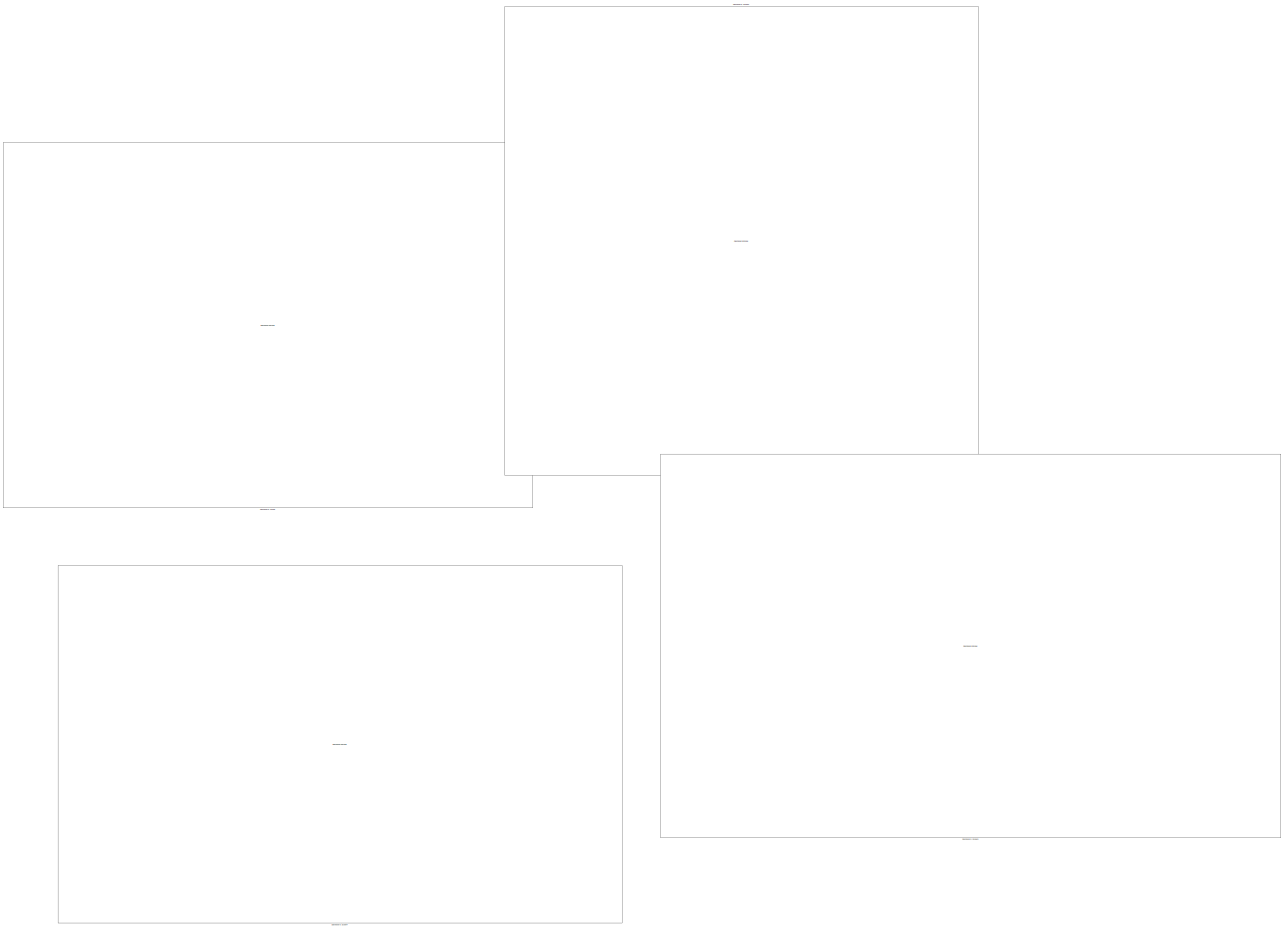
[diagram: root canvas - part 1/7, middle right region]
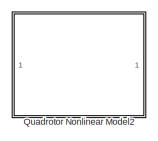
[diagram: root canvas - part 2/7, middle left region]
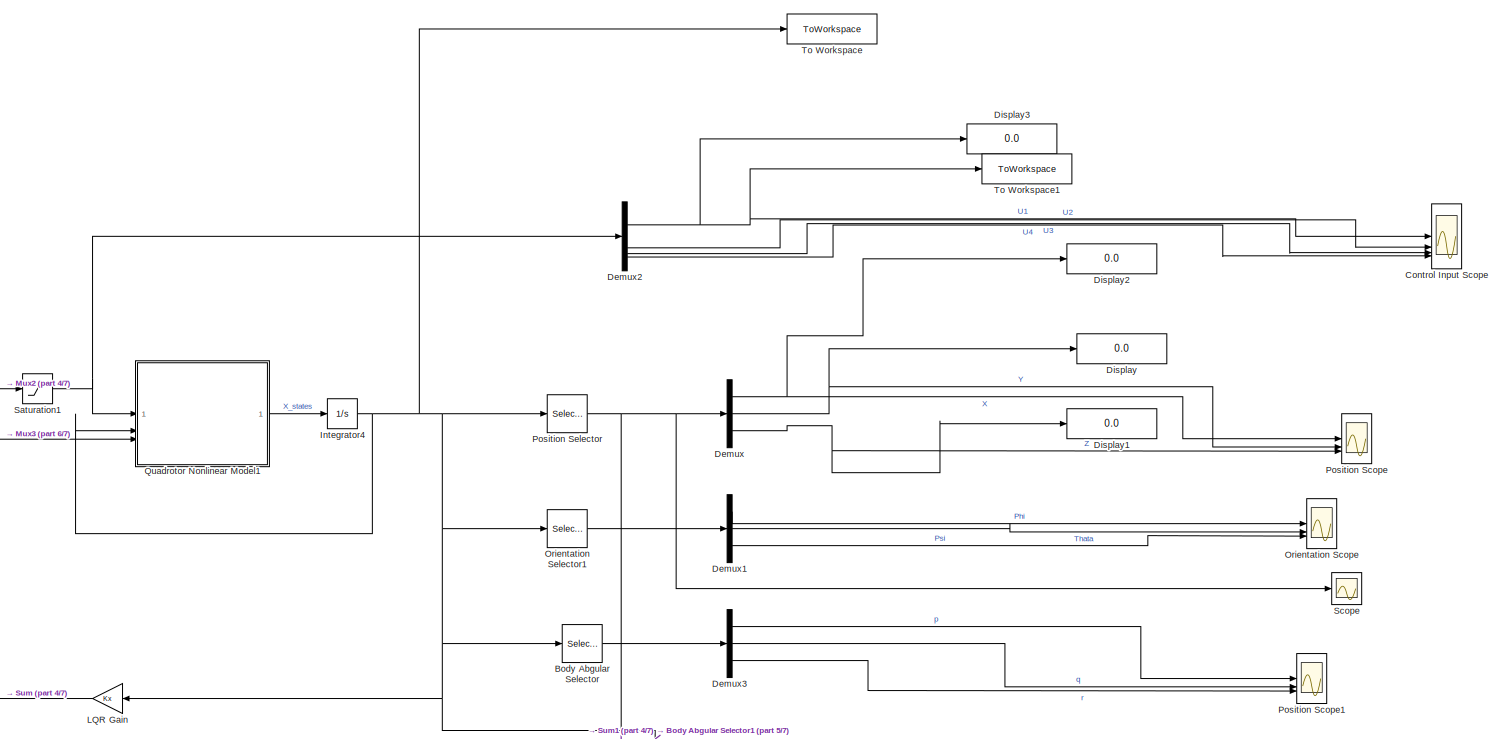
[diagram: root canvas - part 3/7, middle left region]
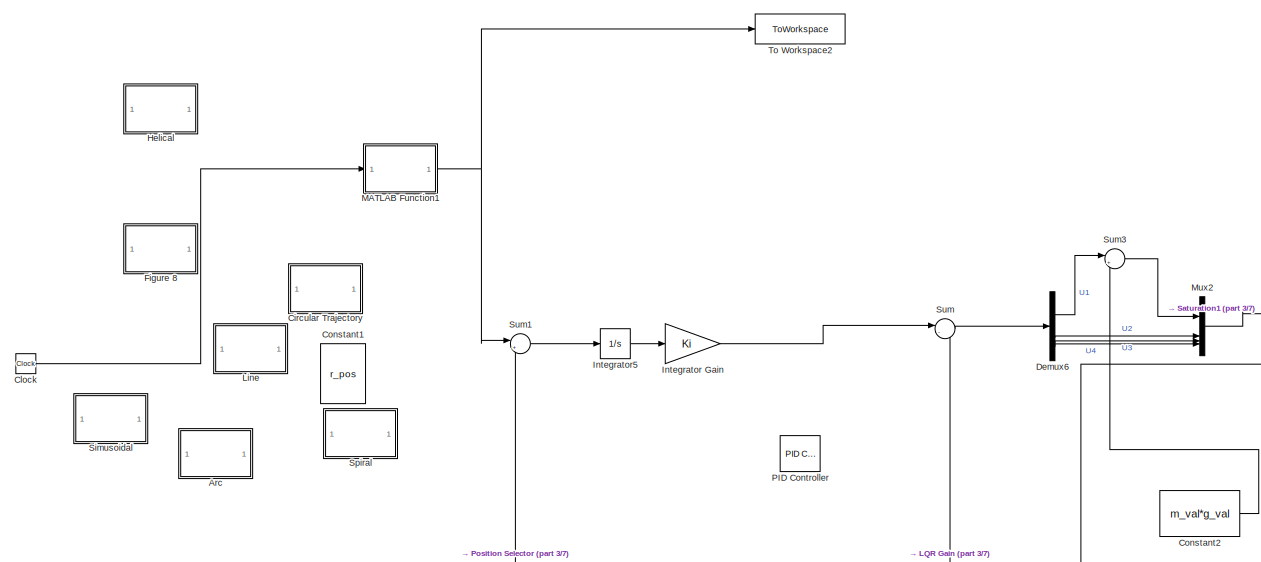
[diagram: root canvas - part 4/7, middle left region]
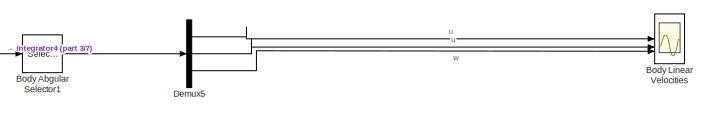
[diagram: root canvas - part 5/7, middle left region]
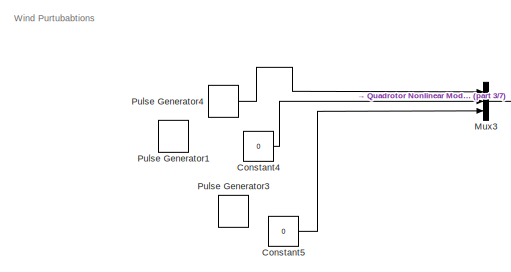
[diagram: root canvas - part 6/7, middle left region]
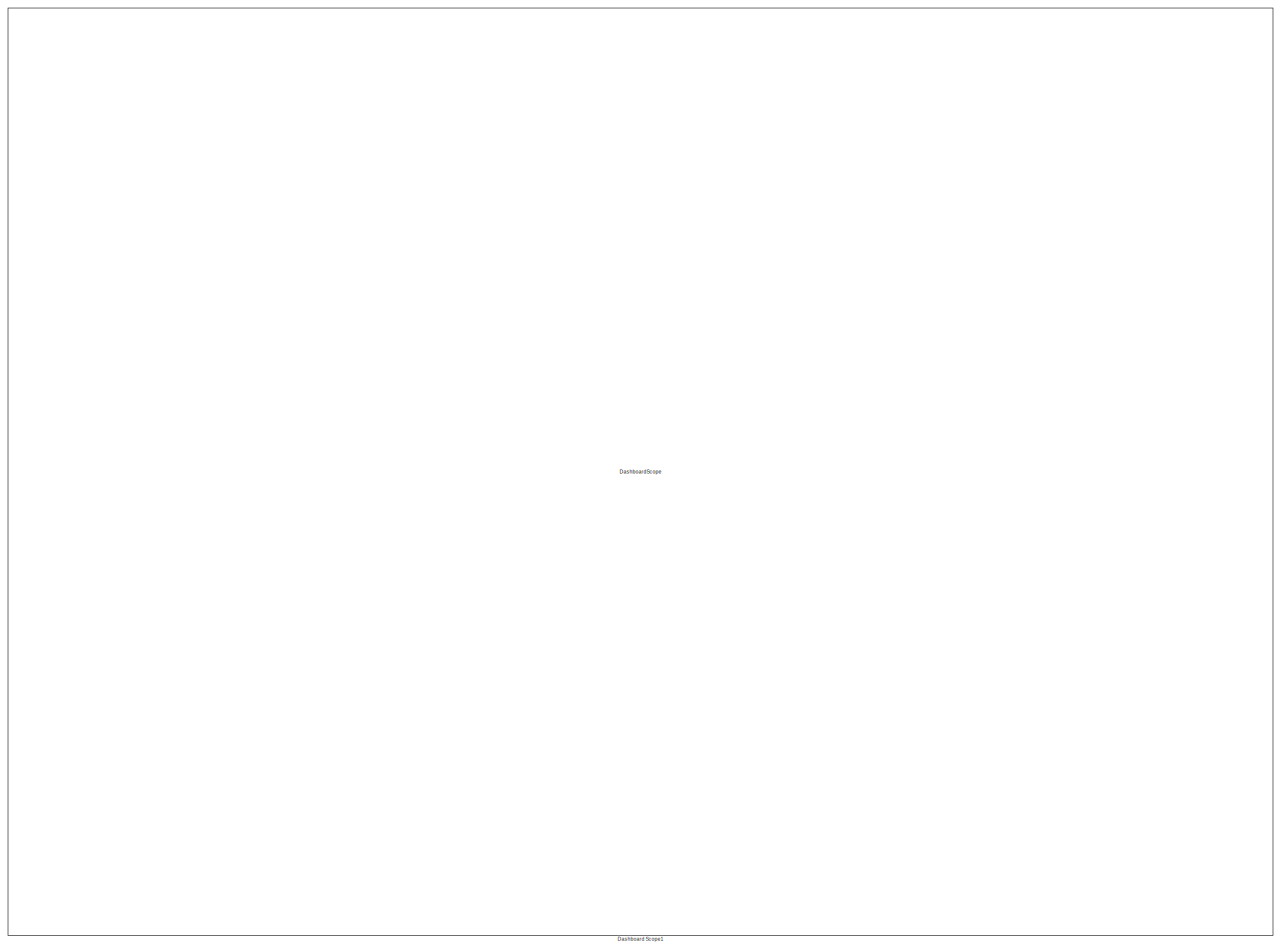
[diagram: root canvas - part 7/7, bottom right region]
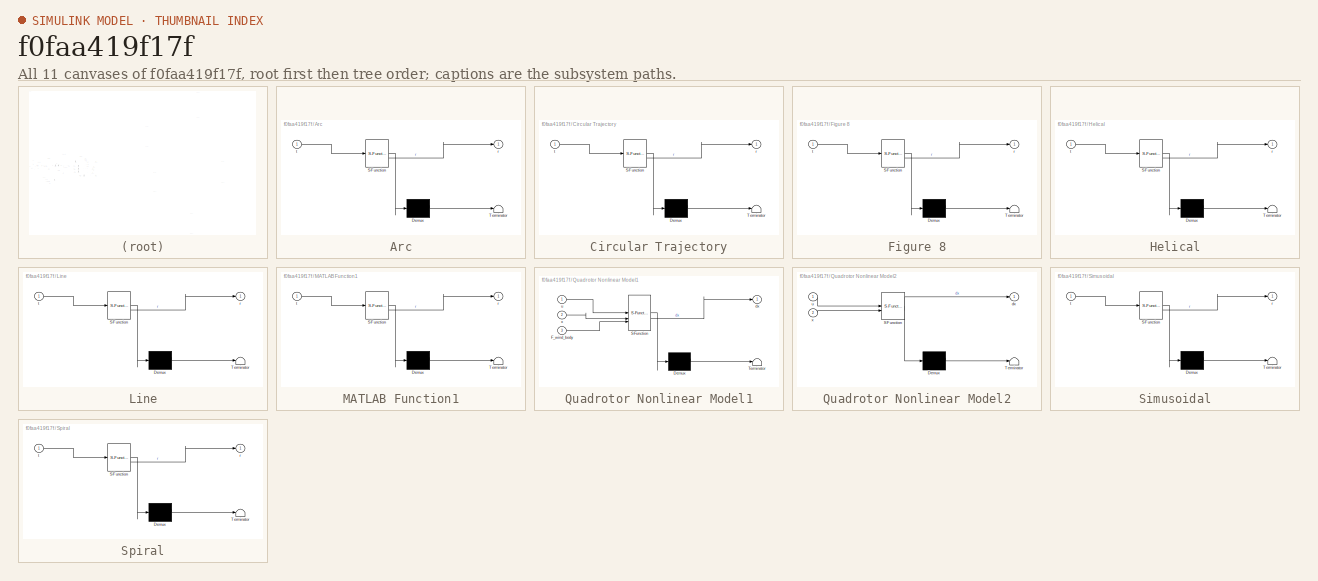
[diagram: thumbnail index - all 11 canvases of the model, root first then tree order]
MODEL slx_f0faa419f17f
KIND model
CONFIG AbsTol = auto
CONFIG EnableMultiTasking = off
CONFIG FixedStep = auto
CONFIG MaxStep = auto
CONFIG MinStep = auto
CONFIG RelTol = 1e-3
CONFIG SampleTimeConstraint = Unconstrained
CONFIG SolverName = VariableStepAuto
CONFIG StartTime = 0.0
CONFIG StopTime = 10.0
BLOCK [SubSystem] Arc
  ErrorFcn = Stateflow.Translate.translate
  PermitHierarchicalResolution = ExplicitOnly
  SFBlockType = MATLAB Function
  TreatAsAtomicUnit = on
BLOCK [Demux] Arc/ Demux 
  Outputs = 1
BLOCK [S-Function] Arc/ SFunction 
  EnableBusSupport = on
  FunctionName = sf_sfun
  PortCounts = [1 2]
  SFcnIsStateOwnerBlock = off
  SFunctionDeploymentMode = off
  Tag = Stateflow S-Function 6
BLOCK [Terminator] Arc/ Terminator 
BLOCK [Outport] Arc/r
BLOCK [Inport] Arc/t
BLOCK [Selector] Body Abgular Selector
  IndexOptions = Index vector (dialog)
  Indices = [10 11 12]
  InputPortWidth = 12
  OutputSizes = 1
BLOCK [Selector] Body Abgular Selector1
  IndexOptions = Index vector (dialog)
  Indices = [7 8 9]
  InputPortWidth = 12
  OutputSizes = 1
BLOCK [Scope] Body Linear Velocities
  Commented = on
  Floating = off
  NumInputPorts = 3
  ScopeSpecificationString = Simulink.scopes.TimeScopeBlockCfg('CurrentConfiguration', extmgr.ConfigurationSet(extmgr.Configuration('Core','General UI',true),extmgr.Configuration('Core','Source UI',true),extmgr.Configuration('Sources','WiredSimulink',true,'DataLoggingVariableName','ScopeData1'),extmgr.Configuration('Visuals','Time Domain',true),extmgr.Configuration('Tools','Plot Navigation',true),extmgr.Configuration('Tools',...<+40ch>
BLOCK [SubSystem] Circular Trajectory
  ErrorFcn = Stateflow.Translate.translate
  PermitHierarchicalResolution = ExplicitOnly
  SFBlockType = MATLAB Function
  TreatAsAtomicUnit = on
BLOCK [Demux] Circular Trajectory/ Demux 
  Outputs = 1
BLOCK [S-Function] Circular Trajectory/ SFunction 
  EnableBusSupport = on
  FunctionName = sf_sfun
  PortCounts = [1 2]
  SFcnIsStateOwnerBlock = off
  SFunctionDeploymentMode = off
  Tag = Stateflow S-Function 1
BLOCK [Terminator] Circular Trajectory/ Terminator 
BLOCK [Outport] Circular Trajectory/r
BLOCK [Inport] Circular Trajectory/t
BLOCK [Clock] Clock
BLOCK [Constant] Constant1
  Value = r_pos
  VectorParams1D = off
BLOCK [Constant] Constant2
  Value = m_val*g_val
BLOCK [Constant] Constant4
  Value = 0
BLOCK [Constant] Constant5
  Value = 0
BLOCK [Scope] Control Input Scope
  Commented = on
  Floating = off
  NumInputPorts = 4
  ScopeSpecificationString = Simulink.scopes.TimeScopeBlockCfg('CurrentConfiguration', extmgr.ConfigurationSet(extmgr.Configuration('Core','General UI',true),extmgr.Configuration('Core','Source UI',true),extmgr.Configuration('Sources','WiredSimulink',true,'DataLoggingVariableName','ScopeData2'),extmgr.Configuration('Visuals','Time Domain',true,'SerializedDisplays',{struct('MinYLimReal','-0.03151','MaxYLimReal','0.25254','YLab...<+1494ch>
BLOCK [DashboardScope] Dashboard Scope
BLOCK [DashboardScope] Dashboard Scope1
BLOCK [DashboardScope] Dashboard Scope2
BLOCK [DashboardScope] Dashboard Scope3
BLOCK [DashboardScope] Dashboard Scope4
BLOCK [Demux] Demux
  Outputs = 3
BLOCK [Demux] Demux1
  Outputs = 3
BLOCK [Demux] Demux2
BLOCK [Demux] Demux3
  Outputs = 3
BLOCK [Demux] Demux5
  Outputs = 3
BLOCK [Demux] Demux6
BLOCK [Display] Display
  Decimation = 1
BLOCK [Display] Display1
  Decimation = 1
BLOCK [Display] Display2
  Decimation = 1
BLOCK [Display] Display3
  Decimation = 1
BLOCK [SubSystem] Figure 8
  ErrorFcn = Stateflow.Translate.translate
  PermitHierarchicalResolution = ExplicitOnly
  SFBlockType = MATLAB Function
  TreatAsAtomicUnit = on
BLOCK [Demux] Figure 8/ Demux 
  Outputs = 1
BLOCK [S-Function] Figure 8/ SFunction 
  EnableBusSupport = on
  FunctionName = sf_sfun
  PortCounts = [1 2]
  SFcnIsStateOwnerBlock = off
  SFunctionDeploymentMode = off
  Tag = Stateflow S-Function 9
BLOCK [Terminator] Figure 8/ Terminator 
BLOCK [Outport] Figure 8/r
BLOCK [Inport] Figure 8/t
BLOCK [SubSystem] Helical
  ErrorFcn = Stateflow.Translate.translate
  PermitHierarchicalResolution = ExplicitOnly
  SFBlockType = MATLAB Function
  TreatAsAtomicUnit = on
BLOCK [Demux] Helical/ Demux 
  Outputs = 1
BLOCK [S-Function] Helical/ SFunction 
  EnableBusSupport = on
  FunctionName = sf_sfun
  PortCounts = [1 2]
  SFcnIsStateOwnerBlock = off
  SFunctionDeploymentMode = off
  Tag = Stateflow S-Function 10
BLOCK [Terminator] Helical/ Terminator 
BLOCK [Outport] Helical/r
BLOCK [Inport] Helical/t
BLOCK [Gain] Integrator Gain
  Gain = Ki
  Multiplication = Matrix(K*u)
BLOCK [Integrator] Integrator4
  InitialCondition = [0; 0; 0; zeros(9,1)]
BLOCK [Integrator] Integrator5
BLOCK [Gain] LQR Gain
  Gain = Kx
  Multiplication = Matrix(K*u)
BLOCK [SubSystem] Line
  ErrorFcn = Stateflow.Translate.translate
  PermitHierarchicalResolution = ExplicitOnly
  SFBlockType = MATLAB Function
  TreatAsAtomicUnit = on
BLOCK [Demux] Line/ Demux 
  Outputs = 1
BLOCK [S-Function] Line/ SFunction 
  EnableBusSupport = on
  FunctionName = sf_sfun
  PortCounts = [1 2]
  SFcnIsStateOwnerBlock = off
  SFunctionDeploymentMode = off
  Tag = Stateflow S-Function 2
BLOCK [Terminator] Line/ Terminator 
BLOCK [Outport] Line/r
BLOCK [Inport] Line/t
BLOCK [SubSystem] MATLAB Function1
  ErrorFcn = Stateflow.Translate.translate
  PermitHierarchicalResolution = ExplicitOnly
  SFBlockType = MATLAB Function
  TreatAsAtomicUnit = on
BLOCK [Demux] MATLAB Function1/ Demux 
  Outputs = 1
BLOCK [S-Function] MATLAB Function1/ SFunction 
  EnableBusSupport = on
  FunctionName = sf_sfun
  PortCounts = [1 2]
  SFcnIsStateOwnerBlock = off
  SFunctionDeploymentMode = off
  Tag = Stateflow S-Function 3
BLOCK [Terminator] MATLAB Function1/ Terminator 
BLOCK [Outport] MATLAB Function1/r
BLOCK [Inport] MATLAB Function1/t
BLOCK [Mux] Mux2
  DisplayOption = bar
BLOCK [Mux] Mux3
  DisplayOption = bar
  Inputs = 3
BLOCK [Scope] Orientation Scope
  Commented = on
  Floating = off
  NumInputPorts = 3
  ScopeSpecificationString = Simulink.scopes.TimeScopeBlockCfg('CurrentConfiguration', extmgr.ConfigurationSet(extmgr.Configuration('Core','General UI',true),extmgr.Configuration('Core','Source UI',true),extmgr.Configuration('Sources','WiredSimulink',true,'DataLoggingVariableName','ScopeData3'),extmgr.Configuration('Visuals','Time Domain',true),extmgr.Configuration('Tools','Plot Navigation',true),extmgr.Configuration('Tools',...<+40ch>
BLOCK [Selector] Orientation Selector1
  IndexOptions = Index vector (dialog)
  Indices = [4 5 6]
  InputPortWidth = 12
  OutputSizes = 1
BLOCK [Reference] PID Controller  REF=slpidlib/PID Controller
  LibrarySourceBlock = simulink/Continuous/PID Controller
  SourceBlock = slpidlib/PID Controller
  SourceType = PID 1dof
BLOCK [Scope] Position Scope
  Commented = on
  Floating = off
  NumInputPorts = 3
  ScopeSpecificationString = Simulink.scopes.TimeScopeBlockCfg('CurrentConfiguration', extmgr.ConfigurationSet(extmgr.Configuration('Core','General UI',true),extmgr.Configuration('Core','Source UI',true),extmgr.Configuration('Sources','WiredSimulink',true,'DataLoggingVariableName','ScopeData4'),extmgr.Configuration('Visuals','Time Domain',true,'SerializedDisplays',{struct('MinYLimReal','-3.23636','MaxYLimReal','29.12723','YLa...<+1490ch>
BLOCK [Scope] Position Scope1
  Commented = on
  Floating = off
  NumInputPorts = 3
  ScopeSpecificationString = Simulink.scopes.TimeScopeBlockCfg('CurrentConfiguration', extmgr.ConfigurationSet(extmgr.Configuration('Core','General UI',true),extmgr.Configuration('Core','Source UI',true),extmgr.Configuration('Sources','WiredSimulink',true,'DataLoggingVariableName','ScopeData5'),extmgr.Configuration('Visuals','Time Domain',true),extmgr.Configuration('Tools','Plot Navigation',true),extmgr.Configuration('Tools',...<+40ch>
BLOCK [Selector] Position Selector
  IndexOptions = Index vector (dialog)
  Indices = [1 2 3]
  InputPortWidth = 12
  OutputSizes = 1
BLOCK [DiscretePulseGenerator] Pulse Generator1
  Amplitude = 10
  Period = 10
  PhaseDelay = 20
  PulseWidth = 5
  SampleTime = 10
BLOCK [DiscretePulseGenerator] Pulse Generator3
  Amplitude = 3
  Period = 5
  PhaseDelay = 100
  PulseType = Time based
BLOCK [DiscretePulseGenerator] Pulse Generator4
  Amplitude = 3
  Period = 10
  PhaseDelay = 50
  PulseType = Time based
  PulseWidth = 5
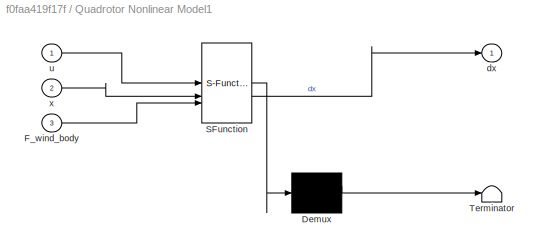
BLOCK [SubSystem] Quadrotor Nonlinear Model1
  ErrorFcn = Stateflow.Translate.translate
  PermitHierarchicalResolution = ExplicitOnly
  SFBlockType = MATLAB Function
  TreatAsAtomicUnit = on
BLOCK [Demux] Quadrotor Nonlinear Model1/ Demux 
  Outputs = 1
BLOCK [S-Function] Quadrotor Nonlinear Model1/ SFunction 
  EnableBusSupport = on
  FunctionName = sf_sfun
  PortCounts = [3 2]
  SFcnIsStateOwnerBlock = off
  SFunctionDeploymentMode = off
  Tag = Stateflow S-Function 4
BLOCK [Terminator] Quadrotor Nonlinear Model1/ Terminator 
BLOCK [Inport] Quadrotor Nonlinear Model1/F_wind_body
  Port = 3
BLOCK [Outport] Quadrotor Nonlinear Model1/dx
BLOCK [Inport] Quadrotor Nonlinear Model1/u
BLOCK [Inport] Quadrotor Nonlinear Model1/x
  Port = 2
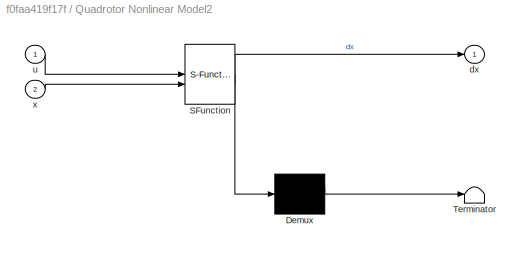
BLOCK [SubSystem] Quadrotor Nonlinear Model2
  ErrorFcn = Stateflow.Translate.translate
  PermitHierarchicalResolution = ExplicitOnly
  SFBlockType = MATLAB Function
  TreatAsAtomicUnit = on
BLOCK [Demux] Quadrotor Nonlinear Model2/ Demux 
  Outputs = 1
BLOCK [S-Function] Quadrotor Nonlinear Model2/ SFunction 
  EnableBusSupport = on
  FunctionName = sf_sfun
  PortCounts = [2 2]
  SFcnIsStateOwnerBlock = off
  SFunctionDeploymentMode = off
  Tag = Stateflow S-Function 5
BLOCK [Terminator] Quadrotor Nonlinear Model2/ Terminator 
BLOCK [Outport] Quadrotor Nonlinear Model2/dx
BLOCK [Inport] Quadrotor Nonlinear Model2/u
BLOCK [Inport] Quadrotor Nonlinear Model2/x
  Port = 2
BLOCK [Saturate] Saturation1
  LowerLimit = [0; -0.15; -0.10; -0.10]
  UpperLimit = [40; 0.15; 0.1;0.1]
BLOCK [Scope] Scope
  Commented = on
  Floating = off
  NumInputPorts = 1
  ScopeSpecificationString = Simulink.scopes.TimeScopeBlockCfg('CurrentConfiguration', extmgr.ConfigurationSet(extmgr.Configuration('Core','General UI',true),extmgr.Configuration('Core','Source UI',true),extmgr.Configuration('Sources','WiredSimulink',true,'DataLoggingVariableName','ScopeData6'),extmgr.Configuration('Visuals','Time Domain',true,'SerializedDisplays',{struct('MinYLimReal','-1.38686','MaxYLimReal','11.35463','YLa...<+1544ch>
BLOCK [SubSystem] Simusoidal
  ErrorFcn = Stateflow.Translate.translate
  PermitHierarchicalResolution = ExplicitOnly
  SFBlockType = MATLAB Function
  TreatAsAtomicUnit = on
BLOCK [Demux] Simusoidal/ Demux 
  Outputs = 1
BLOCK [S-Function] Simusoidal/ SFunction 
  EnableBusSupport = on
  FunctionName = sf_sfun
  PortCounts = [1 2]
  SFcnIsStateOwnerBlock = off
  SFunctionDeploymentMode = off
  Tag = Stateflow S-Function 7
BLOCK [Terminator] Simusoidal/ Terminator 
BLOCK [Outport] Simusoidal/r
BLOCK [Inport] Simusoidal/t
BLOCK [SubSystem] Spiral
  ErrorFcn = Stateflow.Translate.translate
  PermitHierarchicalResolution = ExplicitOnly
  SFBlockType = MATLAB Function
  TreatAsAtomicUnit = on
BLOCK [Demux] Spiral/ Demux 
  Outputs = 1
BLOCK [S-Function] Spiral/ SFunction 
  EnableBusSupport = on
  FunctionName = sf_sfun
  PortCounts = [1 2]
  SFcnIsStateOwnerBlock = off
  SFunctionDeploymentMode = off
  Tag = Stateflow S-Function 8
BLOCK [Terminator] Spiral/ Terminator 
BLOCK [Outport] Spiral/r
BLOCK [Inport] Spiral/t
BLOCK [Sum] Sum
  Inputs = |--
BLOCK [Sum] Sum1
  Inputs = |+-
BLOCK [Sum] Sum3
  Inputs = |++
BLOCK [ToWorkspace] To Workspace
  MaxDataPoints = inf
  SampleTime = -1
  VariableName = X_states
BLOCK [ToWorkspace] To Workspace1
  FixptAsFi = on
  MaxDataPoints = inf
  SampleTime = -1
  SaveFormat = Timeseries
  VariableName = U1
BLOCK [ToWorkspace] To Workspace2
  FixptAsFi = on
  MaxDataPoints = inf
  SampleTime = -1
  SaveFormat = Timeseries
  VariableName = r_traj
ANNOTATION (root): Wind Purtubabtions
LINE Body Abgular Selector1:1 -> Demux5:1
LINE Body Abgular Selector:1 -> Demux3:1
LINE Clock:1 -> MATLAB Function1:1
LINE Constant2:1 -> Sum3:2
LINE Constant4:1 -> Mux3:2
LINE Constant5:1 -> Mux3:3
LINE Demux1:1 -> Orientation Scope:1
LINE Demux1:2 -> Orientation Scope:2
LINE Demux1:3 -> Orientation Scope:3
NET Demux2:1 -> Control Input Scope:1, Display3:1, To Workspace1:1
LINE Demux2:2 -> Control Input Scope:2
LINE Demux2:3 -> Control Input Scope:3
LINE Demux2:4 -> Control Input Scope:4
LINE Demux3:1 -> Position Scope1:1
LINE Demux3:2 -> Position Scope1:2
LINE Demux3:3 -> Position Scope1:3
LINE Demux5:1 -> Body Linear Velocities:1
LINE Demux5:2 -> Body Linear Velocities:2
LINE Demux5:3 -> Body Linear Velocities:3
LINE Demux6:1 -> Sum3:1
LINE Demux6:2 -> Mux2:2
LINE Demux6:3 -> Mux2:3
LINE Demux6:4 -> Mux2:4
NET Demux:1 -> Display2:1, Position Scope:1
NET Demux:2 -> Display:1, Position Scope:2
NET Demux:3 -> Display1:1, Position Scope:3
LINE Integrator Gain:1 -> Sum:1
NET Integrator4:1 -> Body Abgular Selector1:1, Body Abgular Selector:1, LQR Gain:1, Orientation Selector1:1, Position Selector:1, Quadrotor Nonlinear Model1:2, To Workspace:1
LINE Integrator5:1 -> Integrator Gain:1
LINE LQR Gain:1 -> Sum:2
NET MATLAB Function1:1 -> Sum1:1, To Workspace2:1
LINE Mux2:1 -> Saturation1:1
LINE Mux3:1 -> Quadrotor Nonlinear Model1:3
LINE Orientation Selector1:1 -> Demux1:1
NET Position Selector:1 -> Demux:1, Scope:1, Sum1:2
LINE Pulse Generator4:1 -> Mux3:1
LINE Quadrotor Nonlinear Model1:1 -> Integrator4:1
NET Saturation1:1 -> Demux2:1, Quadrotor Nonlinear Model1:1
LINE Sum1:1 -> Integrator5:1
LINE Sum3:1 -> Mux2:1
LINE Sum:1 -> Demux6:1
note: NET lines group one-source signal fan-out (src -> all destinations, sorted); 1:1 wires keep LINE
CHART Line states=1 transitions=1
  STATE_LABEL 'eML_blk_kernel()'
  STATE_LABEL 'SCRIPT:\nfunction r = linear_ref(t)\n    % Define total time and start/end positions\n    T_total = 50;  % duration of trajectory\n    r_start = [0; 0; 0];\n    r_end   = [5; 5; 5];\n\n    % Clamp progress between 0 and 1\n    progress = min(max(t / T_total, 0), 1);\n\n    % Linear interpolation\n    r = r_start + (r_end - r_start) * progress;\nend\n'
CHART MATLAB Function1 states=1 transitions=1
  STATE_LABEL 'eML_blk_kernel()'
  STATE_LABEL 'SCRIPT:\nfunction r = rectangular_trajectory(t)\n    % Rectangular trajectory parameters\n    x_length = 10;       % Rectangle length (x-direction) in meters\n    y_width = 8;         % Rectangle width (y-direction) in meters\n    z_height = 5;        % Z height in meters\n    duration = 500;       % Total duration in seconds\n    \n    % Add initial offset to match quadcopter starting position\n    x_offs...<+1423ch>'
CHART Quadrotor Nonlinear Model1 states=1 transitions=1
  STATE_LABEL 'eML_blk_kernel()'
  STATE_LABEL 'SCRIPT:\nfunction dx = quadrotor_dynamics(u, x, F_wind_body)\n    % Physical parameters\n    m = 0.547; % Mass [kg]\n    g = 9.81; % Gravity [m/s^2]\n    Cd = 1.0; % Drag coefficient [-]\n    Ix = 3.3e-3;\n    Iy = 3.3e-3;\n    Iz = 5.8e-3;\n    Ax = 0.011;\n    Ay = 0.011;\n    Az = 0.022;\n    rho = 1.225; % Air density [kg/m^3]\n    \n    % REMOVE THIS LINE - it overwrites the input state!\n    % x = zeros(12...<+1937ch>'
CHART Quadrotor Nonlinear Model2 states=1 transitions=1
  STATE_LABEL 'eML_blk_kernel()'
  STATE_LABEL 'SCRIPT:\nfunction dx = quadrotor_dynamics(u, x)\n% Inputs:\n%   t   - time (optional, use [] if unused)\n%   x   - 12x1 state vector [x; y; z; phi; theta; psi; u; v; w; p; q; r]\n%   u   - 4x1 control inputs [U1; U2; U3; U4]\n%   m,g,rho,Cd,Ax,Ay,Az,Ix,Iy,Iz - physical parameters\n\n\n% x = [x; y; z; phi; theta; psi; u; v; w; p; q; r]\n% Position (inertial): x(1:3)\n% Orientation (Euler): x(4:6)\n% Linear vel...<+2025ch>'
CHART Arc states=1 transitions=1
  STATE_LABEL 'eML_blk_kernel()'
  STATE_LABEL 'SCRIPT:\nfunction r = arc_trajectory(t)\n    % Arc parameters\n    R = 5;\n    theta_start = 0;\n    theta_end = pi/2;\n    duration = 10;\n    z_const = 5;\n    \n    % Add initial offset to match quadcopter starting position\n    x_offset = 0;  % Starting at x=0\n    y_offset = 0;  % Starting at y=0\n    z_offset = 0;  % Starting at z=0\n    \n    % Time progression\n    progress = min(max(t / duration, 0), 1)...<+340ch>'
CHART Simusoidal states=1 transitions=1
  STATE_LABEL 'eML_blk_kernel()'
  STATE_LABEL 'SCRIPT:\nfunction r = sinusoidal_trajectory(t)\n    % Sinusoidal trajectory with varying frequencies\n    % Parameters\n    x_amp = 5;           % X amplitude in meters\n    y_amp = 3;           % Y amplitude in meters\n    z_max = 5;           % Maximum z height in meters\n    duration = 500;       % Total duration in seconds\n    \n    % Frequency parameters\n    f_start = 0.1;       % Starting frequency ...<+817ch>'
CHART Spiral states=1 transitions=1
  STATE_LABEL 'eML_blk_kernel()'
  STATE_LABEL 'SCRIPT:\nfunction r = spiral_trajectory(t)\n    % Spiral Trajectory Generator\n\n    % Parameters\n    R = 5;                 % Radius of spiral (constant)\n    duration = 500;         % Total time for spiral traversal\n    turns = 2;             % Number of full 2π turns\n    height = 5;            % Total height climbed\n\n    % Time normalization\n    progress = min(max(t / duration, 0), 1);\n\n    % Angle ...<+274ch>'
CHART Figure 8 states=1 transitions=1
  STATE_LABEL 'eML_blk_kernel()'
  STATE_LABEL 'SCRIPT:\nfunction r = figure_eight_trajectory(t)\n    % Parameters\n    R = 5;               % Radius of the loops\n    omega = 0.2;         % Angular speed [rad/s]\n    duration = 500;       % Total time to complete one figure-eight\n    z_const = 5;         % Constant height\n    \n    % Initial offset (optional)\n    x_offset = 0;\n    y_offset = 0;\n    z_offset = 0;\n\n    % Time progression\n    progress ...<+251ch>'
CHART Helical states=1 transitions=1
  STATE_LABEL 'eML_blk_kernel()'
  STATE_LABEL 'SCRIPT:\nfunction r = helical_trajectory(t)\n    % Parameters\n    R = 5;              % Radius in meters\n    omega = 2 * pi / 20; % Angular speed (rad/s) for smooth loops\n    z_max = 10;         % Max height\n    duration = 500;     % Total trajectory time in seconds\n\n    % Time progress normalized\n    progress = min(max(t / duration, 0), 1);\n    theta = omega * t;\n\n    % Reference position, offset t...<+168ch>'
CHART Circular Trajectory states=1 transitions=1
  STATE_LABEL 'eML_blk_kernel()'
  STATE_LABEL 'SCRIPT:\n\n\nfunction r = trajectory(t)\n\n% Parameters (you can also pass these in or make them tunable)\nR = 5;           % Radius of circle (meters)\nomega = 0.1;     % Angular frequency (rad/s)\nz0 = 10;         % Base altitude (meters)\nA = 2;           % Amplitude of vertical oscillation (meters)\nomega_z = 0.05;  % Vertical oscillation frequency (rad/s)\n\n\nx_offset = 0;  % Starting at x=0\ny_offset = 0...<+281ch>'
CHART  states=0 transitions=0
CHART  states=0 transitions=0
CHART  states=0 transitions=0
CHART  states=0 transitions=0
CHART  states=0 transitions=0
CHART  states=0 transitions=0
CHART  states=0 transitions=0
CHART  states=0 transitions=0
CHART  states=0 transitions=0
CHART  states=0 transitions=0
